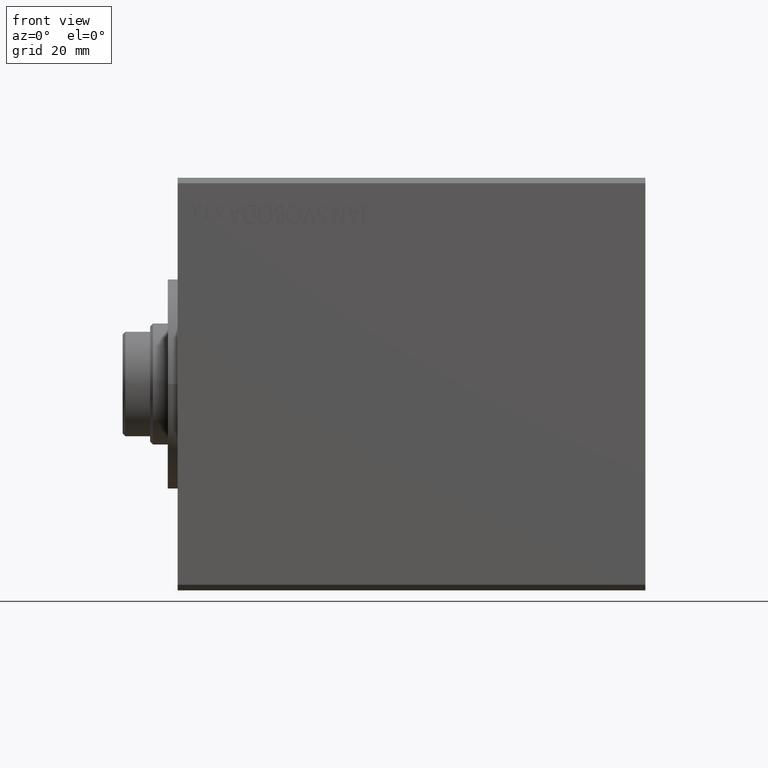
[diagram: clean part render]
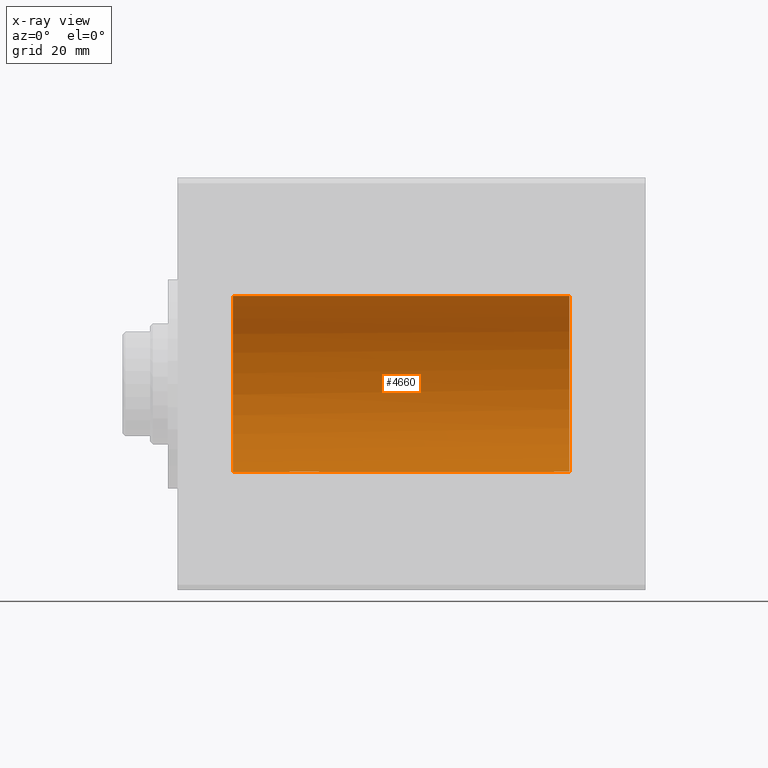
[diagram: x-ray — body ghosted, one internal face saturated and labeled with its STEP entity id]
A machine part, front view, then the same camera in x-ray: the body is ghosted and one INTERNAL B-rep face — a face not visible from any outside direction — is saturated and labeled: STEP entity #4660.
In plain terms, the highlighted cylindrical surface (partial cylindrical patch) has radius 16 mm, axis along (-1, -0, -0).
Its self-contained STEP definition (entity closure, byte-faithful):
#729 = VERTEX_POINT ( 'NONE', #29308 ) ;
#855 = EDGE_CURVE ( 'NONE', #4349, #15784, #7223, .T. ) ;
#1287 = EDGE_CURVE ( 'NONE', #11118, #729, #27125, .T. ) ;
#2447 = CARTESIAN_POINT ( 'NONE',  ( 20.32103554224154607, 0.6416550435731651625, -15.98791951246752241 ) ) ;
#2810 = DIRECTION ( 'NONE',  ( -1.000000000000000000, -0.000000000000000000, -0.000000000000000000 ) ) ;
#2881 = CARTESIAN_POINT ( 'NONE',  ( 20.26435230214253380, 0.3237335850403343929, -15.99751506009603652 ) ) ;
#3040 = FACE_OUTER_BOUND ( 'NONE', #30924, .T. ) ;
#3622 = ORIENTED_EDGE ( 'NONE', *, *, #23383, .F. ) ;
#4085 = LINE ( 'NONE', #38685, #34303 ) ;
#4349 = VERTEX_POINT ( 'NONE', #5558 ) ;
#4660 = ADVANCED_FACE ( 'NONE', ( #3040 ), #6163, .F. ) ;
#5161 = CARTESIAN_POINT ( 'NONE',  ( 25.46669777805105639, 1.258673386848676135, -15.95335904956524864 ) ) ;
#5558 = CARTESIAN_POINT ( 'NONE',  ( 68.25000000000000000, 1.952197382189107282E-15, -16.00000000000000000 ) ) ;
#5918 = AXIS2_PLACEMENT_3D ( 'NONE', #30486, #2810, #27135 ) ;
#6131 = CARTESIAN_POINT ( 'NONE',  ( 68.90894763336743267, 1.786057109949259036, -15.89999999999998970 ) ) ;
#6163 = CYLINDRICAL_SURFACE ( 'NONE', #5918, 16.00000000000000000 ) ;
#7223 = LINE ( 'NONE', #17667, #33615 ) ;
#7621 = CARTESIAN_POINT ( 'NONE',  ( 25.75000000000000000, 1.966672454835068530E-15, -16.00000000000000000 ) ) ;
#9091 = DIRECTION ( 'NONE',  ( 0.000000000000000000, 0.000000000000000000, 1.000000000000000000 ) ) ;
#9598 = CARTESIAN_POINT ( 'NONE',  ( 71.20000000000000284, 0.000000000000000000, 16.00000000000000000 ) ) ;
#9696 = CIRCLE ( 'NONE', #43944, 16.00000000000000000 ) ;
#11118 = VERTEX_POINT ( 'NONE', #28205 ) ;
#11423 = DIRECTION ( 'NONE',  ( -1.000000000000000000, -0.000000000000000000, -0.000000000000000000 ) ) ;
#11597 = EDGE_CURVE ( 'NONE', #11118, #15784, #42269, .T. ) ;
#11630 = VERTEX_POINT ( 'NONE', #9598 ) ;
#12689 = CARTESIAN_POINT ( 'NONE',  ( 20.70828422114123057, 1.528580496451064752, -15.92742812959714982 ) ) ;
#14101 = DIRECTION ( 'NONE',  ( -1.000000000000000000, -0.000000000000000000, -0.000000000000000000 ) ) ;
#14254 = VECTOR ( 'NONE', #40489, 1000.000000000000000 ) ;
#14560 = CARTESIAN_POINT ( 'NONE',  ( 68.36400824168859458, 0.8002234119869059414, -15.98070334047259955 ) ) ;
#14673 = EDGE_CURVE ( 'NONE', #11630, #22005, #4085, .T. ) ;
#14779 = CARTESIAN_POINT ( 'NONE',  ( 68.80302300273470451, 1.662044306363391621, -15.91393043707982002 ) ) ;
#14835 = ORIENTED_EDGE ( 'NONE', *, *, #37680, .F. ) ;
#15192 = CARTESIAN_POINT ( 'NONE',  ( 25.09105236663257088, 1.786057109949259036, -15.89999999999998970 ) ) ;
#15343 = CARTESIAN_POINT ( 'NONE',  ( 10.00000000000000178, 0.000000000000000000, 0.000000000000000000 ) ) ;
#15586 = CARTESIAN_POINT ( 'NONE',  ( 71.20000000000000284, 0.000000000000000000, 0.000000000000000000 ) ) ;
#15784 = VERTEX_POINT ( 'NONE', #7621 ) ;
#17228 = VERTEX_POINT ( 'NONE', #6131 ) ;
#17667 = CARTESIAN_POINT ( 'NONE',  ( 71.20000000000000284, 1.959434878635765131E-15, -16.00000000000000000 ) ) ;
#17712 = B_SPLINE_CURVE_WITH_KNOTS ( 'NONE', 3,
 ( #29449, #25876, #2881, #2447, #43294, #33457, #43516, #12689, #23395, #36604 ),
 .UNSPECIFIED., .F., .F.,
 ( 4, 2, 2, 2, 4 ),
 ( 0.001937515079377276567, 0.002421672136522722528, 0.002905829193668168706, 0.003389986250813614450, 0.003874143307959060194 ),
 .UNSPECIFIED. ) ;
#18282 = DIRECTION ( 'NONE',  ( -1.000000000000000000, 0.000000000000000000, 0.000000000000000000 ) ) ;
#18759 = CARTESIAN_POINT ( 'NONE',  ( 25.67843830749630740, 0.6438297815899759469, -15.98783114994251697 ) ) ;
#19186 = CARTESIAN_POINT ( 'NONE',  ( 25.63617786229477957, 0.7997846173174859574, -15.98073294566550473 ) ) ;
#19379 = VECTOR ( 'NONE', #28991, 1000.000000000000000 ) ;
#19404 = CARTESIAN_POINT ( 'NONE',  ( 71.20000000000000284, 1.959434878635765131E-15, -16.00000000000000000 ) ) ;
#20625 = ORIENTED_EDGE ( 'NONE', *, *, #36961, .T. ) ;
#22005 = VERTEX_POINT ( 'NONE', #34491 ) ;
#23276 = LINE ( 'NONE', #37815, #14254 ) ;
#23383 = EDGE_CURVE ( 'NONE', #11630, #38305, #9696, .T. ) ;
#23395 = CARTESIAN_POINT ( 'NONE',  ( 20.80302300273467964, 1.662044306363391177, -15.91393043707981292 ) ) ;
#24087 = DIRECTION ( 'NONE',  ( -1.000000000000000000, -0.000000000000000000, -0.000000000000000000 ) ) ;
#24599 = CARTESIAN_POINT ( 'NONE',  ( 68.24999999999997158, 0.1628529246558471921, -16.00000000000000000 ) ) ;
#25248 = CARTESIAN_POINT ( 'NONE',  ( 68.90894763336743267, 1.786057109949259036, -15.89999999999998970 ) ) ;
#25497 = EDGE_CURVE ( 'NONE', #22005, #30920, #26838, .T. ) ;
#25674 = CARTESIAN_POINT ( 'NONE',  ( 25.75000000000000355, 0.1629275007895856497, -16.00000000000000000 ) ) ;
#25832 = DIRECTION ( 'NONE',  ( -1.000000000000000000, 0.000000000000000000, 0.000000000000000000 ) ) ;
#25876 = CARTESIAN_POINT ( 'NONE',  ( 20.25000000000000000, 0.1628529246558463039, -16.00000000000000000 ) ) ;
#25954 = VERTEX_POINT ( 'NONE', #33754 ) ;
#26157 = EDGE_CURVE ( 'NONE', #25954, #30920, #36403, .T. ) ;
#26838 = CIRCLE ( 'NONE', #43974, 16.00000000000000000 ) ;
#27125 = LINE ( 'NONE', #29204, #19379 ) ;
#27135 = DIRECTION ( 'NONE',  ( 0.000000000000000000, 0.000000000000000000, 1.000000000000000000 ) ) ;
#27953 = CARTESIAN_POINT ( 'NONE',  ( 68.25000000000000000, 1.952197382189107282E-15, -16.00000000000000000 ) ) ;
#28174 = CARTESIAN_POINT ( 'NONE',  ( 68.47635814035334079, 1.104555034037120853, -15.96255602784426841 ) ) ;
#28205 = CARTESIAN_POINT ( 'NONE',  ( 25.09105236663257088, 1.786057109949259036, -15.89999999999998970 ) ) ;
#28991 = DIRECTION ( 'NONE',  ( -1.000000000000000000, -0.000000000000000000, -0.000000000000000000 ) ) ;
#29045 = ORIENTED_EDGE ( 'NONE', *, *, #855, .F. ) ;
#29204 = CARTESIAN_POINT ( 'NONE',  ( 71.20000000000000284, 1.786057109949259036, -15.89999999999998970 ) ) ;
#29308 = CARTESIAN_POINT ( 'NONE',  ( 20.90894763336742912, 1.786057109949259036, -15.89999999999998970 ) ) ;
#29449 = CARTESIAN_POINT ( 'NONE',  ( 20.25000000000000000, 1.952197298178576320E-15, -16.00000000000000000 ) ) ;
#30486 = CARTESIAN_POINT ( 'NONE',  ( 71.20000000000000284, 0.000000000000000000, 0.000000000000000000 ) ) ;
#30920 = VERTEX_POINT ( 'NONE', #40782 ) ;
#30924 = EDGE_LOOP ( 'NONE', ( #29045, #20625, #14835, #3622, #35576, #42517, #37241, #43831, #40473, #38720 ) ) ;
#31750 = CARTESIAN_POINT ( 'NONE',  ( 68.26435230214252670, 0.3237335850403360027, -15.99751506009603652 ) ) ;
#31967 = CARTESIAN_POINT ( 'NONE',  ( 68.54529199024538855, 1.250171241089530927, -15.95169574138015989 ) ) ;
#32390 = CARTESIAN_POINT ( 'NONE',  ( 25.75000000000000000, 1.966672454835068530E-15, -16.00000000000000000 ) ) ;
#32827 = CARTESIAN_POINT ( 'NONE',  ( 25.73536268302067853, 0.3260974502564771282, -15.99746611559688780 ) ) ;
#33457 = CARTESIAN_POINT ( 'NONE',  ( 20.47635814035335855, 1.104555034037125516, -15.96255602784426841 ) ) ;
#33615 = VECTOR ( 'NONE', #14101, 1000.000000000000000 ) ;
#33754 = CARTESIAN_POINT ( 'NONE',  ( 20.25000000000000000, 1.952197298178576320E-15, -16.00000000000000000 ) ) ;
#34303 = VECTOR ( 'NONE', #11423, 1000.000000000000000 ) ;
#34491 = CARTESIAN_POINT ( 'NONE',  ( 10.00000000000000178, 0.000000000000000000, 16.00000000000000000 ) ) ;
#34506 = EDGE_CURVE ( 'NONE', #25954, #729, #17712, .T. ) ;
#35576 = ORIENTED_EDGE ( 'NONE', *, *, #14673, .T. ) ;
#36403 = LINE ( 'NONE', #19404, #39038 ) ;
#36600 = CARTESIAN_POINT ( 'NONE',  ( 71.20000000000000284, 1.786057109949259036, -15.89999999999998970 ) ) ;
#36604 = CARTESIAN_POINT ( 'NONE',  ( 20.90894763336742912, 1.786057109949259036, -15.89999999999998970 ) ) ;
#36961 = EDGE_CURVE ( 'NONE', #4349, #17228, #42089, .T. ) ;
#37241 = ORIENTED_EDGE ( 'NONE', *, *, #26157, .F. ) ;
#37680 = EDGE_CURVE ( 'NONE', #38305, #17228, #23276, .T. ) ;
#37815 = CARTESIAN_POINT ( 'NONE',  ( 71.20000000000000284, 1.786057109949259036, -15.89999999999998970 ) ) ;
#38247 = CARTESIAN_POINT ( 'NONE',  ( 68.32103554224153186, 0.6416550435731660507, -15.98791951246752241 ) ) ;
#38305 = VERTEX_POINT ( 'NONE', #36600 ) ;
#38459 = CARTESIAN_POINT ( 'NONE',  ( 68.70828422114125544, 1.528580496451065862, -15.92742812959715337 ) ) ;
#38685 = CARTESIAN_POINT ( 'NONE',  ( 71.20000000000000284, 0.000000000000000000, 16.00000000000000000 ) ) ;
#38720 = ORIENTED_EDGE ( 'NONE', *, *, #11597, .T. ) ;
#39038 = VECTOR ( 'NONE', #24087, 1000.000000000000000 ) ;
#40473 = ORIENTED_EDGE ( 'NONE', *, *, #1287, .F. ) ;
#40489 = DIRECTION ( 'NONE',  ( -1.000000000000000000, -0.000000000000000000, -0.000000000000000000 ) ) ;
#40782 = CARTESIAN_POINT ( 'NONE',  ( 10.00000000000000178, 1.959434878635765131E-15, -16.00000000000000000 ) ) ;
#41967 = DIRECTION ( 'NONE',  ( 0.000000000000000000, 0.000000000000000000, 1.000000000000000000 ) ) ;
#42089 = B_SPLINE_CURVE_WITH_KNOTS ( 'NONE', 3,
 ( #27953, #24599, #31750, #38247, #14560, #28174, #31967, #38459, #14779, #25248 ),
 .UNSPECIFIED., .F., .F.,
 ( 4, 2, 2, 2, 4 ),
 ( 0.001937515079377274182, 0.002421672136522719492, 0.002905829193668165236, 0.003389986250813610113, 0.003874143307959055423 ),
 .UNSPECIFIED. ) ;
#42224 = CARTESIAN_POINT ( 'NONE',  ( 25.30299467954352011, 1.537922561208759253, -15.92787311163533914 ) ) ;
#42269 = B_SPLINE_CURVE_WITH_KNOTS ( 'NONE', 3,
 ( #15192, #42224, #5161, #19186, #18759, #32827, #25674, #32390 ),
 .UNSPECIFIED., .F., .F.,
 ( 4, 2, 2, 4 ),
 ( 0.000000000000000000, 0.0009687575396886391509, 0.001453136309532957046, 0.001937515079377275266 ),
 .UNSPECIFIED. ) ;
#42517 = ORIENTED_EDGE ( 'NONE', *, *, #25497, .T. ) ;
#43294 = CARTESIAN_POINT ( 'NONE',  ( 20.36400824168861234, 0.8002234119869107154, -15.98070334047259777 ) ) ;
#43516 = CARTESIAN_POINT ( 'NONE',  ( 20.54529199024537789, 1.250171241089528928, -15.95169574138015278 ) ) ;
#43831 = ORIENTED_EDGE ( 'NONE', *, *, #34506, .T. ) ;
#43944 = AXIS2_PLACEMENT_3D ( 'NONE', #15586, #18282, #41967 ) ;
#43974 = AXIS2_PLACEMENT_3D ( 'NONE', #15343, #25832, #9091 ) ;